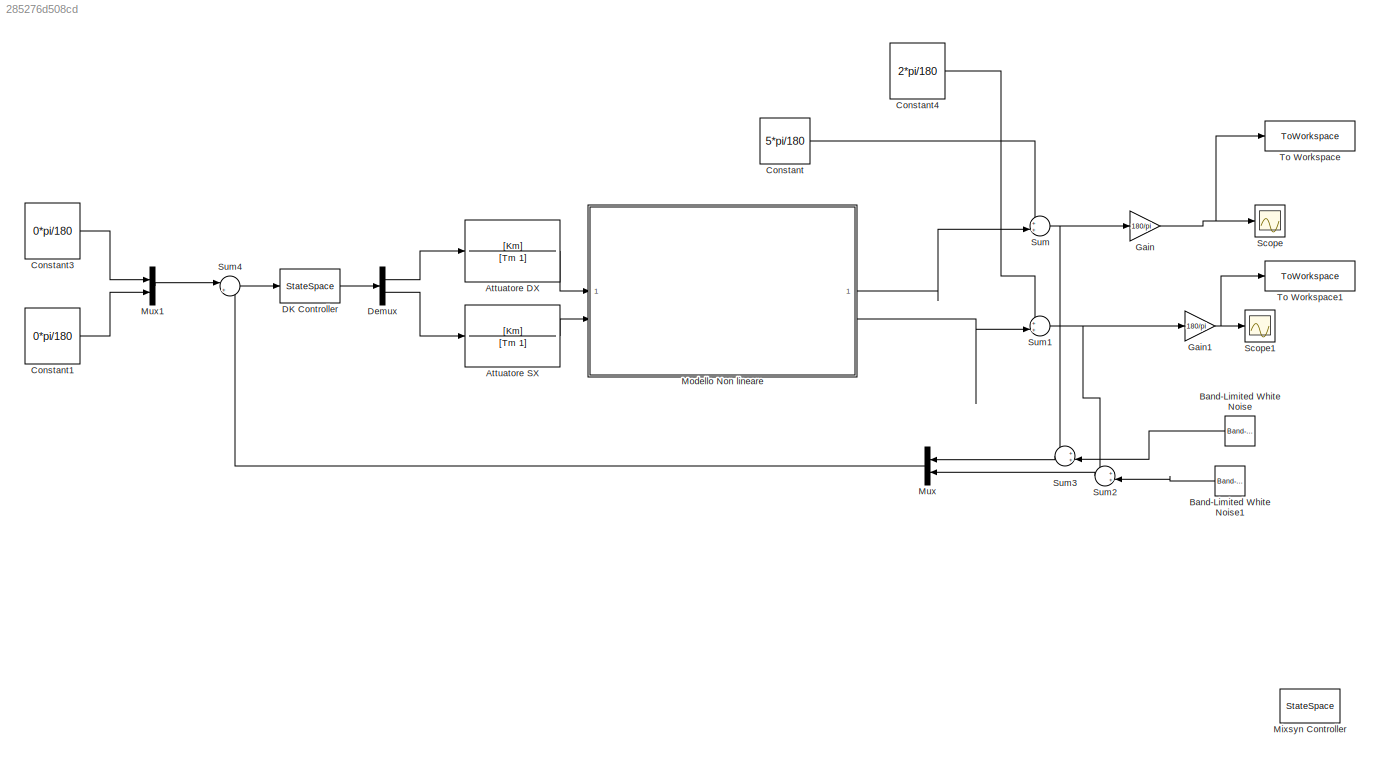
MODEL slx_285276d508cd
KIND model
CONFIG AbsTol = auto
CONFIG EnableMultiTasking = off
CONFIG FixedStep = auto
CONFIG MaxStep = auto
CONFIG MinStep = auto
CONFIG RelTol = 1e-3
CONFIG SampleTimeConstraint = Unconstrained
CONFIG SolverName = VariableStepAuto
CONFIG StartTime = 0.0
CONFIG StopTime = 60
BLOCK [TransferFcn] Attuatore DX
  Denominator = [Tm 1]
  Numerator = [Km]
BLOCK [TransferFcn] Attuatore SX
  Denominator = [Tm 1]
  Numerator = [Km]
BLOCK [Reference] Band-Limited White Noise  REF=simulink/Sources/Band-Limited
White Noise
  NameLocation = top
  SourceBlock = simulink/Sources/Band-Limited\nWhite Noise
  SourceType = Band-Limited White Noise.
BLOCK [Reference] Band-Limited White Noise1  REF=simulink/Sources/Band-Limited
White Noise
  NameLocation = top
  SourceBlock = simulink/Sources/Band-Limited\nWhite Noise
  SourceType = Band-Limited White Noise.
BLOCK [Constant] Constant
  Value = 5*pi/180
BLOCK [Constant] Constant1
  Value = 0*pi/180
BLOCK [Constant] Constant3
  Value = 0*pi/180
BLOCK [Constant] Constant4
  Value = 2*pi/180
BLOCK [StateSpace] DK Controller
  A = K_musyn.A
  B = K_musyn.B
  C = K_musyn.C
  D = K_musyn.D
  InitialCondition = zeros(length(K_musyn.A),1)
BLOCK [Demux] Demux
  Outputs = 2
BLOCK [Gain] Gain
  Gain = 180/pi
BLOCK [Gain] Gain1
  Gain = 180/pi
BLOCK [StateSpace] Mixsyn Controller
  A = K_ms.A
  B = K_ms.B
  C = K_ms.C
  Commented = on
  D = K_ms.D
  InitialCondition = zeros(length(K_ms.A),1)
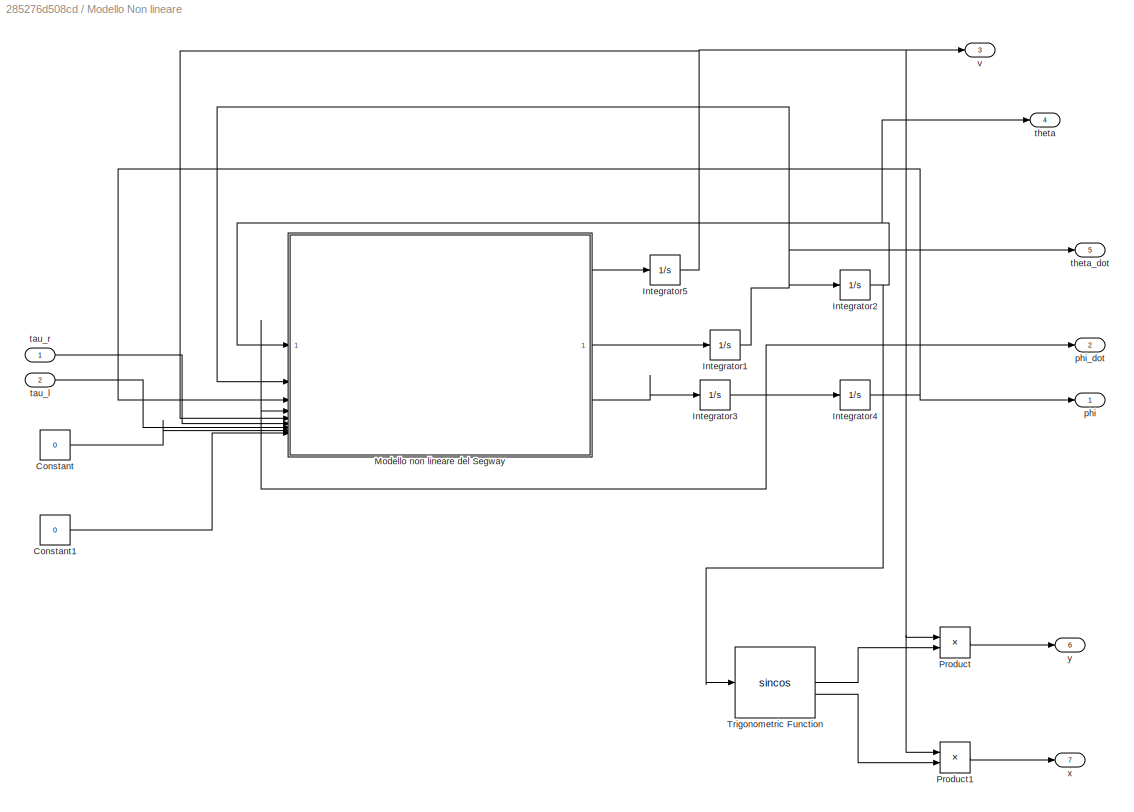
BLOCK [SubSystem] Modello Non lineare
BLOCK [Constant] Modello Non lineare/Constant
  Value = 0
BLOCK [Constant] Modello Non lineare/Constant1
  Value = 0
BLOCK [Integrator] Modello Non lineare/Integrator1
BLOCK [Integrator] Modello Non lineare/Integrator2
BLOCK [Integrator] Modello Non lineare/Integrator3
BLOCK [Integrator] Modello Non lineare/Integrator4
BLOCK [Integrator] Modello Non lineare/Integrator5
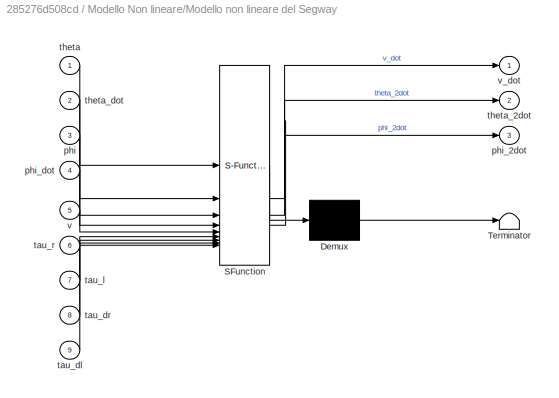
BLOCK [SubSystem] Modello Non lineare/Modello  non lineare del Segway
  ErrorFcn = Stateflow.Translate.translate
  LibrarySourceBlock = simulink/User-Defined\nFunctions/MATLAB Function
  PermitHierarchicalResolution = ExplicitOnly
  SFBlockType = MATLAB Function
  TreatAsAtomicUnit = on
BLOCK [Demux] Modello Non lineare/Modello  non lineare del Segway/ Demux 
  Outputs = 1
BLOCK [S-Function] Modello Non lineare/Modello  non lineare del Segway/ SFunction 
  EnableBusSupport = on
  FunctionName = sf_sfun
  PortCounts = [9 4]
  SFcnIsStateOwnerBlock = off
  SFunctionDeploymentMode = off
  Tag = Stateflow S-Function 2
BLOCK [Terminator] Modello Non lineare/Modello  non lineare del Segway/ Terminator 
BLOCK [Inport] Modello Non lineare/Modello  non lineare del Segway/phi
  Port = 3
BLOCK [Outport] Modello Non lineare/Modello  non lineare del Segway/phi_2dot
  Port = 3
BLOCK [Inport] Modello Non lineare/Modello  non lineare del Segway/phi_dot
  Port = 4
BLOCK [Inport] Modello Non lineare/Modello  non lineare del Segway/tau_dl
  Port = 9
BLOCK [Inport] Modello Non lineare/Modello  non lineare del Segway/tau_dr
  Port = 8
BLOCK [Inport] Modello Non lineare/Modello  non lineare del Segway/tau_l
  Port = 7
BLOCK [Inport] Modello Non lineare/Modello  non lineare del Segway/tau_r
  Port = 6
BLOCK [Inport] Modello Non lineare/Modello  non lineare del Segway/theta
BLOCK [Outport] Modello Non lineare/Modello  non lineare del Segway/theta_2dot
  Port = 2
BLOCK [Inport] Modello Non lineare/Modello  non lineare del Segway/theta_dot
  Port = 2
BLOCK [Inport] Modello Non lineare/Modello  non lineare del Segway/v
  Port = 5
BLOCK [Outport] Modello Non lineare/Modello  non lineare del Segway/v_dot
BLOCK [Product] Modello Non lineare/Product
BLOCK [Product] Modello Non lineare/Product1
BLOCK [Trigonometry] Modello Non lineare/Trigonometric Function
  Operator = sincos
BLOCK [Outport] Modello Non lineare/phi
BLOCK [Outport] Modello Non lineare/phi_dot
  Port = 2
BLOCK [Inport] Modello Non lineare/tau_l
  Port = 2
BLOCK [Inport] Modello Non lineare/tau_r
BLOCK [Outport] Modello Non lineare/theta
  Port = 4
BLOCK [Outport] Modello Non lineare/theta_dot
  Port = 5
BLOCK [Outport] Modello Non lineare/v
  Port = 3
BLOCK [Outport] Modello Non lineare/x
  Port = 7
BLOCK [Outport] Modello Non lineare/y
  Port = 6
BLOCK [Mux] Mux
  DisplayOption = bar
  Inputs = 2
  NameLocation = top
BLOCK [Mux] Mux1
  DisplayOption = bar
  Inputs = 2
BLOCK [Scope] Scope
  Floating = off
  NumInputPorts = 1
  ScopeSpecificationString = Simulink.scopes.TimeScopeBlockCfg('CurrentConfiguration', extmgr.ConfigurationSet(extmgr.Configuration('Core','General UI',true),extmgr.Configuration('Core','Source UI',true),extmgr.Configuration('Sources','WiredSimulink',true),extmgr.Configuration('Visuals','Time Domain',true,'SerializedDisplays',{struct('MinYLimReal','0.69936','MaxYLimReal','5.47785','YLabelReal','','MinYLimMag','0.69936','MaxYL...<+1322ch>
BLOCK [Scope] Scope1
  Floating = off
  NumInputPorts = 1
  ScopeSpecificationString = Simulink.scopes.TimeScopeBlockCfg('CurrentConfiguration', extmgr.ConfigurationSet(extmgr.Configuration('Core','General UI',true),extmgr.Configuration('Core','Source UI',true),extmgr.Configuration('Sources','WiredSimulink',true,'DataLoggingVariableName','ScopeData1'),extmgr.Configuration('Visuals','Time Domain',true,'SerializedDisplays',{struct('MinYLimReal','-5.40378','MaxYLimReal','2.82264','YLab...<+1364ch>
BLOCK [Sum] Sum
  Inputs = ++|
BLOCK [Sum] Sum1
  Inputs = ++|
BLOCK [Sum] Sum2
  Inputs = ++|
  NameLocation = top
BLOCK [Sum] Sum3
  Inputs = ++|
  NameLocation = top
BLOCK [Sum] Sum4
  Inputs = |+-
BLOCK [ToWorkspace] To Workspace
  FixptAsFi = on
  MaxDataPoints = inf
  SampleTime = -1
  SaveFormat = Timeseries
  VariableName = phi_nl
BLOCK [ToWorkspace] To Workspace1
  FixptAsFi = on
  MaxDataPoints = inf
  SampleTime = -1
  SaveFormat = Timeseries
  VariableName = phi_dot_nl
LINE Attuatore DX:1 -> Modello Non lineare:1
LINE Attuatore SX:1 -> Modello Non lineare:2
LINE Band-Limited White Noise1:1 -> Sum2:2
LINE Band-Limited White Noise:1 -> Sum3:2
LINE Constant1:1 -> Mux1:2
LINE Constant3:1 -> Mux1:1
LINE Constant4:1 -> Sum1:1
LINE Constant:1 -> Sum:1
LINE DK Controller:1 -> Demux:1
LINE Demux:1 -> Attuatore DX:1
LINE Demux:2 -> Attuatore SX:1
NET Gain1:1 -> Scope1:1, To Workspace1:1
NET Gain:1 -> Scope:1, To Workspace:1
LINE Modello Non lineare/Constant1:1 -> Modello Non lineare/Modello  non lineare del Segway:9
LINE Modello Non lineare/Constant:1 -> Modello Non lineare/Modello  non lineare del Segway:8
NET Modello Non lineare/Integrator1:1 -> Modello Non lineare/Integrator2:1, Modello Non lineare/Modello  non lineare del Segway:2, Modello Non lineare/theta_dot:1
NET Modello Non lineare/Integrator2:1 -> Modello Non lineare/Modello  non lineare del Segway:1, Modello Non lineare/Trigonometric Function:1, Modello Non lineare/theta:1
NET Modello Non lineare/Integrator3:1 -> Modello Non lineare/Integrator4:1, Modello Non lineare/Modello  non lineare del Segway:4, Modello Non lineare/phi_dot:1
NET Modello Non lineare/Integrator4:1 -> Modello Non lineare/Modello  non lineare del Segway:3, Modello Non lineare/phi:1
NET Modello Non lineare/Integrator5:1 -> Modello Non lineare/Modello  non lineare del Segway:5, Modello Non lineare/Product1:1, Modello Non lineare/Product:1, Modello Non lineare/v:1
LINE Modello Non lineare/Modello  non lineare del Segway:1 -> Modello Non lineare/Integrator5:1
LINE Modello Non lineare/Modello  non lineare del Segway:2 -> Modello Non lineare/Integrator1:1
LINE Modello Non lineare/Modello  non lineare del Segway:3 -> Modello Non lineare/Integrator3:1
LINE Modello Non lineare/Product1:1 -> Modello Non lineare/x:1
LINE Modello Non lineare/Product:1 -> Modello Non lineare/y:1
LINE Modello Non lineare/Trigonometric Function:1 -> Modello Non lineare/Product:2
LINE Modello Non lineare/Trigonometric Function:2 -> Modello Non lineare/Product1:2
LINE Modello Non lineare/tau_l:1 -> Modello Non lineare/Modello  non lineare del Segway:7
LINE Modello Non lineare/tau_r:1 -> Modello Non lineare/Modello  non lineare del Segway:6
LINE Modello Non lineare:1 -> Sum:2
LINE Modello Non lineare:2 -> Sum1:2
LINE Mux1:1 -> Sum4:1
LINE Mux:1 -> Sum4:2
NET Sum1:1 -> Gain1:1, Sum2:1
LINE Sum2:1 -> Mux:2
LINE Sum3:1 -> Mux:1
LINE Sum4:1 -> DK Controller:1
NET Sum:1 -> Gain:1, Sum3:1
note: NET lines group one-source signal fan-out (src -> all destinations, sorted); 1:1 wires keep LINE
CHART Modello Non lineare/Modello  non lineare del Segway states=1 transitions=1
  STATE_LABEL 'eML_blk_kernel()'
  STATE_LABEL 'SCRIPT:\nfunction [v_dot, theta_2dot, phi_2dot] = SegwayDynamics(theta, theta_dot, phi, ...\n    phi_dot, v, tau_r, tau_l, tau_dr, tau_dl)\n    \n    g = 9.81;\n    m = 1.22;\n    r = 0.13;\n    a = 0.496/2;\n    L = 0.2924;\n    g = 9.81;\n    M = 54;\n\n    M_vdot = 2*(3/2*m +0.5*M);\n    M_theta2dot = 2*(3/2*m*a^2 + 1/6*M*a^2 + 1/2*M*L^2*sin(phi)^2);\n    M_phi2dot = 2*(1/2*m*r^2 + 2/3*M*L^2);\n    M_vdot_phi...<+673ch>'
CHART  states=0 transitions=0
